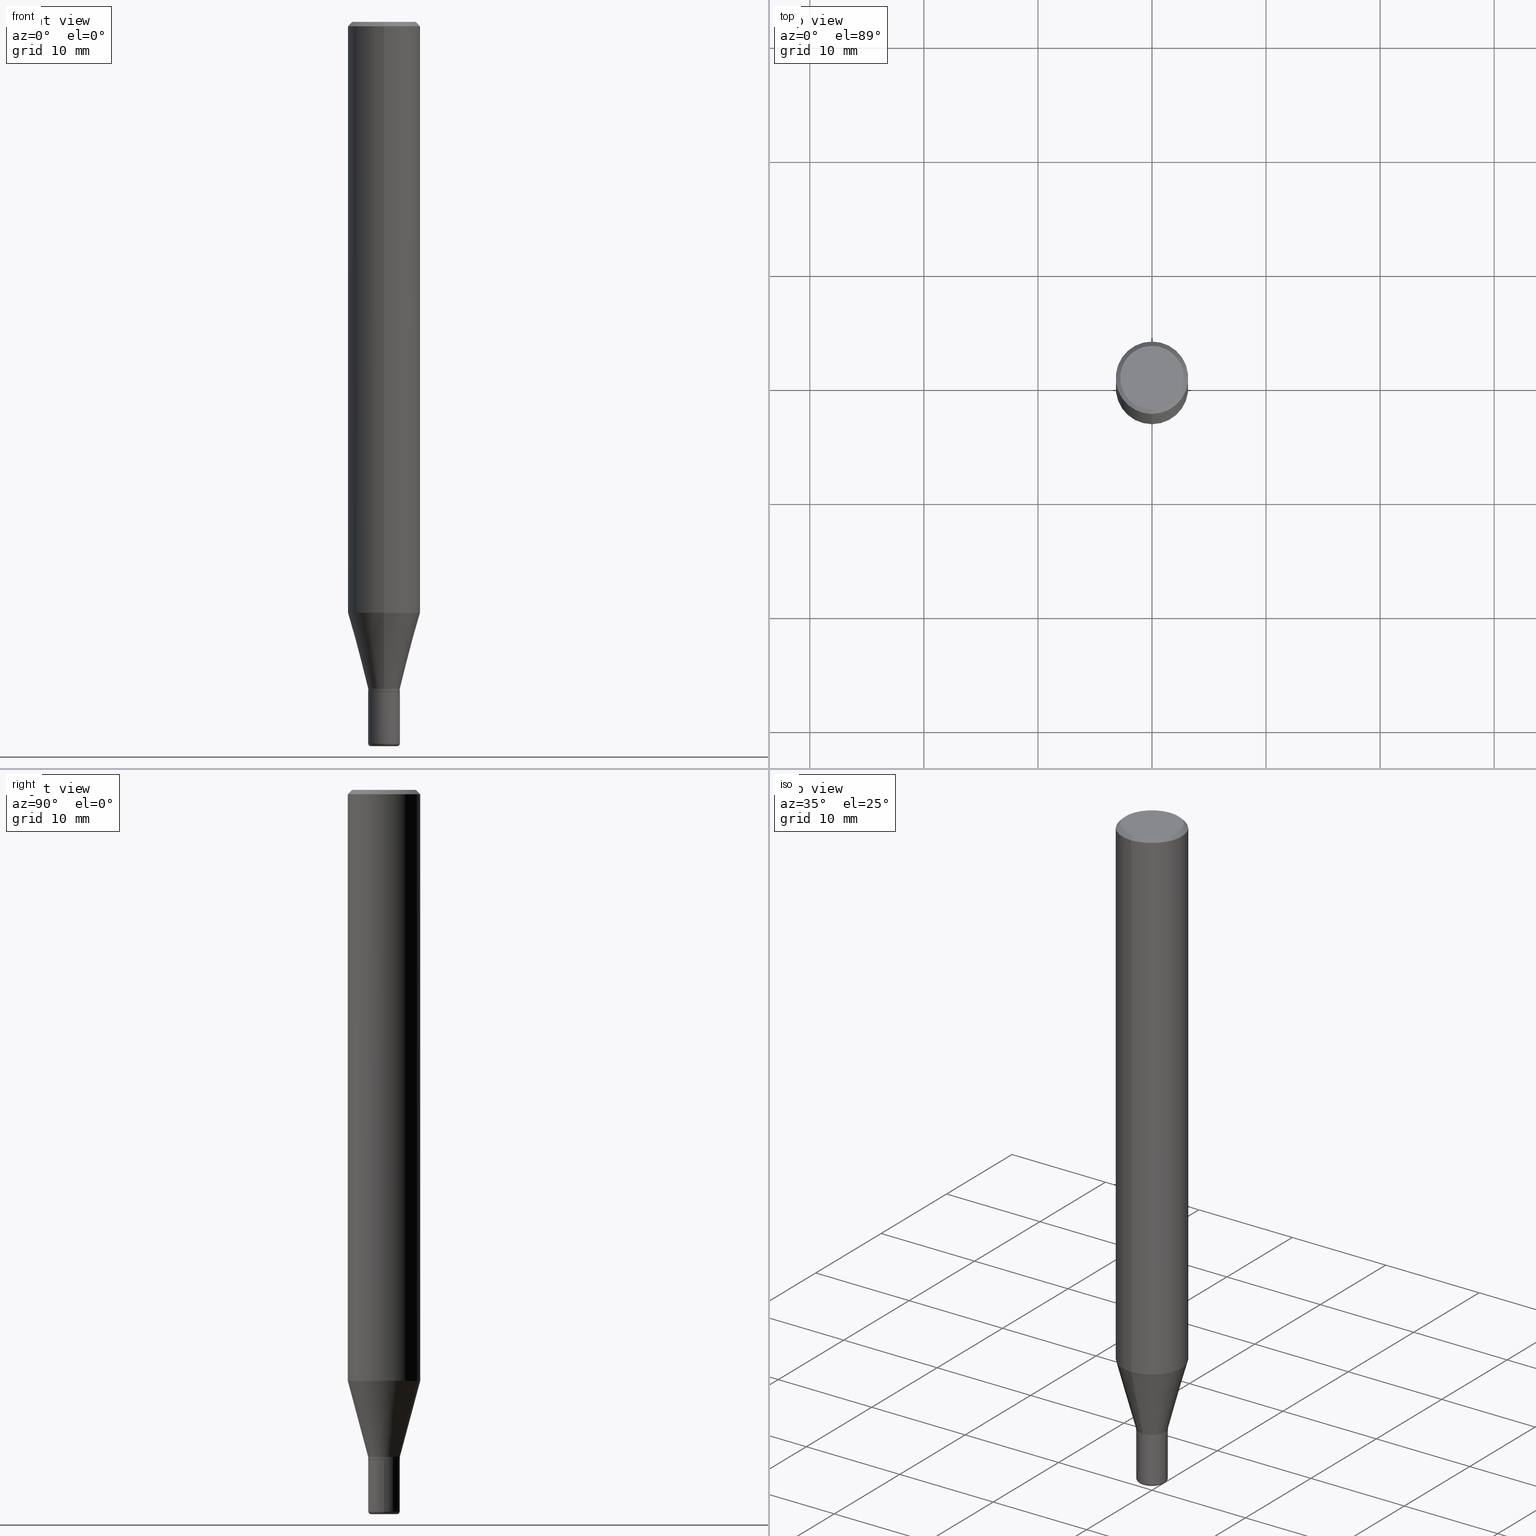
[diagram: canonical four-view strip — front | top / right | iso, engineering-drawing reading convention]
A machine part, canonical four-view strip (front | top / right | iso — engineering-drawing reading convention). The complete STEP part file that produces these views, byte-faithful:
ISO-10303-21;
HEADER;
FILE_DESCRIPTION (( 'STEP AP203' ),
    '1' );
FILE_NAME ('05300.STEP',
    '2024-02-29T19:35:28',
    ( '' ),
    ( '' ),
    'SwSTEP 2.0',
    'SolidWorks 2023',
    '' );
FILE_SCHEMA (( 'CONFIG_CONTROL_DESIGN' ));
ENDSEC;

DATA;
#1 = AXIS2_PLACEMENT_3D ( 'NONE', #424, #445, #93 ) ;
#2 = EDGE_CURVE ( 'NONE', #193, #112, #17, .T. ) ;
#3 = DIRECTION ( 'NONE',  ( -6.982962677686265922E-15, -1.000000000000000000, 4.994237648380730566E-15 ) ) ;
#4 = VERTEX_POINT ( 'NONE', #428 ) ;
#5 = PERSON_AND_ORGANIZATION_ROLE ( 'creator' ) ;
#6 = DIRECTION ( 'NONE',  ( 1.000000000000000000, -6.982962677686286432E-15, 0.000000000000000000 ) ) ;
#7 = DIRECTION ( 'NONE',  ( -6.982962677686266711E-15, -1.000000000000000000, 3.491481338843145583E-15 ) ) ;
#8 = ORIENTED_EDGE ( 'NONE', *, *, #464, .F. ) ;
#9 = ORIENTED_EDGE ( 'NONE', *, *, #244, .F. ) ;
#10 = VECTOR ( 'NONE', #455, 39.37007874015748143 ) ;
#11 = ADVANCED_FACE ( 'NONE', ( #457 ), #165, .T. ) ;
#12 = CARTESIAN_POINT ( 'NONE',  ( -3.819680584693829247E-16, -0.05470000000000810325, -2.302000000000000046 ) ) ;
#13 = CC_DESIGN_PERSON_AND_ORGANIZATION_ASSIGNMENT ( #363, #5, ( #206 ) ) ;
#14 = CARTESIAN_POINT ( 'NONE',  ( -8.728703347107828458E-16, -0.1250000000000000555, -0.01500000000000006363 ) ) ;
#15 = VERTEX_POINT ( 'NONE', #158 ) ;
#16 = DIRECTION ( 'NONE',  ( -2.445425972994914586E-29, 3.491542678409457073E-15, 1.000000000000000000 ) ) ;
#17 = LINE ( 'NONE', #30, #356 ) ;
#18 = ORIENTED_EDGE ( 'NONE', *, *, #51, .F. ) ;
#19 = CALENDAR_DATE ( 2024, 29, 2 ) ;
#20 = CARTESIAN_POINT ( 'NONE',  ( 5.653824849564242337E-29, -8.072446672482665434E-15, -2.312000000000000277 ) ) ;
#21 =( LENGTH_UNIT ( ) NAMED_UNIT ( * ) SI_UNIT ( $, .METRE. ) );
#22 = EDGE_LOOP ( 'NONE', ( #136, #217, #504, #269 ) ) ;
#23 = DIRECTION ( 'NONE',  ( -6.982962677686266711E-15, -1.000000000000000000, 5.040309951410075518E-15 ) ) ;
#24 = EDGE_CURVE ( 'NONE', #4, #310, #302, .T. ) ;
#25 = AXIS2_PLACEMENT_3D ( 'NONE', #49, #218, #42 ) ;
#26 = DIRECTION ( 'NONE',  ( -2.445425972994914586E-29, 3.491542678409457073E-15, 1.000000000000000000 ) ) ;
#27 = EDGE_LOOP ( 'NONE', ( #429, #341, #9, #510 ) ) ;
#28 = CYLINDRICAL_SURFACE ( 'NONE', #331, 0.05470000000000004026 ) ;
#29 = DIRECTION ( 'NONE',  ( 1.000000000000000000, -6.982962677686284854E-15, 0.000000000000000000 ) ) ;
#30 = CARTESIAN_POINT ( 'NONE',  ( -8.575622497214409523E-16, -0.1250000000000000555, -0.01500000000000006363 ) ) ;
#31 = MANIFOLD_SOLID_BREP ( 'Body-Move/Copy2[1]', #199 ) ;
#32 = AXIS2_PLACEMENT_3D ( 'NONE', #110, #97, #275 ) ;
#33 = VERTEX_POINT ( 'NONE', #191 ) ;
#34 = MANIFOLD_SOLID_BREP ( 'Body-Move/Copy2[2]', #315 ) ;
#35 = CONICAL_SURFACE ( 'NONE', #111, 0.05470000000000006801, 0.2617993877991492968 ) ;
#36 = EDGE_CURVE ( 'NONE', #205, #92, #509, .T. ) ;
#37 = APPROVAL_ROLE ( '' ) ;
#38 = ADVANCED_FACE ( 'NONE', ( #425 ), #113, .T. ) ;
#39 = CIRCLE ( 'NONE', #241, 0.05470000000000005413 ) ;
#40 = CARTESIAN_POINT ( 'NONE',  ( -3.819680584694391310E-16, -0.05470000000000006107, 1.909873845089974919E-16 ) ) ;
#41 = ADVANCED_FACE ( 'NONE', ( #276 ), #28, .T. ) ;
#42 = DIRECTION ( 'NONE',  ( 6.982962677686265922E-15, 1.000000000000000000, -3.483106191921935554E-15 ) ) ;
#43 = EDGE_LOOP ( 'NONE', ( #59, #151, #443, #141 ) ) ;
#44 = DIRECTION ( 'NONE',  ( -2.445425972994914586E-29, 3.491542678409457073E-15, 1.000000000000000000 ) ) ;
#45 = APPROVAL ( #230, 'UNSPECIFIED' ) ;
#46 = PRODUCT_RELATED_PRODUCT_CATEGORY ( 'detail', '', ( #189 ) ) ;
#47 = CARTESIAN_POINT ( 'NONE',  ( -3.819680584693819879E-16, -0.05470000000000804080, -2.311500000000000110 ) ) ;
#48 = ORIENTED_EDGE ( 'NONE', *, *, #354, .T. ) ;
#49 = CARTESIAN_POINT ( 'NONE',  ( 3.668138959492494003E-31, -5.237314017614360786E-17, -0.01500000000000049905 ) ) ;
#50 = ORIENTED_EDGE ( 'NONE', *, *, #126, .F. ) ;
#51 = EDGE_CURVE ( 'NONE', #202, #401, #385, .T. ) ;
#52 = APPROVAL_DATE_TIME ( #329, #513 ) ;
#53 = FACE_OUTER_BOUND ( 'NONE', #500, .T. ) ;
#54 = AXIS2_PLACEMENT_3D ( 'NONE', #20, #374, #379 ) ;
#55 = ORIENTED_EDGE ( 'NONE', *, *, #216, .F. ) ;
#56 = AXIS2_PLACEMENT_3D ( 'NONE', #514, #320, #287 ) ;
#57 = DIRECTION ( 'NONE',  ( -2.445468806185136597E-29, 3.491481338843145583E-15, 1.000000000000000000 ) ) ;
#58 = ORIENTED_EDGE ( 'NONE', *, *, #178, .F. ) ;
#59 = ORIENTED_EDGE ( 'NONE', *, *, #280, .F. ) ;
#60 = DIRECTION ( 'NONE',  ( -2.445425972994914586E-29, 3.491542678409457073E-15, 1.000000000000000000 ) ) ;
#61 = ORIENTED_EDGE ( 'NONE', *, *, #288, .F. ) ;
#62 = LINE ( 'NONE', #85, #465 ) ;
#63 = VERTEX_POINT ( 'NONE', #150 ) ;
#64 = CALENDAR_DATE ( 2024, 29, 2 ) ;
#65 = APPROVAL_PERSON_ORGANIZATION ( #511, #155, #37 ) ;
#66 = CARTESIAN_POINT ( 'NONE',  ( 6.089217327400989947E-29, -8.693788533719431716E-15, -2.489999999999999769 ) ) ;
#67 = CIRCLE ( 'NONE', #99, 0.1250000000000000000 ) ;
#68 = CARTESIAN_POINT ( 'NONE',  ( -8.728703347107832402E-16, -0.1250000000000000000, 4.364428348011821341E-16 ) ) ;
#69 = CARTESIAN_POINT ( 'NONE',  ( -0.04470000000000000362, -8.376175930834667203E-15, -2.489999999999999769 ) ) ;
#70 = DIRECTION ( 'NONE',  ( -2.445425972994914586E-29, 3.491542678409457073E-15, 1.000000000000000000 ) ) ;
#71 = ORIENTED_EDGE ( 'NONE', *, *, #120, .F. ) ;
#72 = CARTESIAN_POINT ( 'NONE',  ( 8.881784197001251337E-16, 0.1250000000000000000, -4.364428348011821341E-16 ) ) ;
#73 = COORDINATED_UNIVERSAL_TIME_OFFSET ( 5, 0, .BEHIND. ) ;
#74 = EDGE_CURVE ( 'NONE', #92, #145, #430, .T. ) ;
#75 = EDGE_LOOP ( 'NONE', ( #235, #58 ) ) ;
#76 = VECTOR ( 'NONE', #201, 39.37007874015748143 ) ;
#77 = CIRCLE ( 'NONE', #245, 0.05470000000000006801 ) ;
#78 = AXIS2_PLACEMENT_3D ( 'NONE', #502, #159, #303 ) ;
#79 = CC_DESIGN_SECURITY_CLASSIFICATION ( #366, ( #206 ) ) ;
#80 = AXIS2_PLACEMENT_3D ( 'NONE', #228, #70, #108 ) ;
#81 = CARTESIAN_POINT ( 'NONE',  ( 6.113672015462842613E-29, -8.728703347107864943E-15, -2.500000000000000000 ) ) ;
#82 = ADVANCED_FACE ( 'NONE', ( #98 ), #222, .T. ) ;
#83 = CARTESIAN_POINT ( 'NONE',  ( -8.061085147381547495E-16, -0.1100000000000000283, -1.622931567555180613E-16 ) ) ;
#84 = CC_DESIGN_PERSON_AND_ORGANIZATION_ASSIGNMENT ( #221, #492, ( #189 ) ) ;
#85 = CARTESIAN_POINT ( 'NONE',  ( 3.886668764607751863E-16, 0.05470000000000006107, -1.909873845089974919E-16 ) ) ;
#86 = FACE_OUTER_BOUND ( 'NONE', #305, .T. ) ;
#87 = VECTOR ( 'NONE', #190, 39.37007874015748854 ) ;
#88 = EDGE_LOOP ( 'NONE', ( #397, #229, #491, #422 ) ) ;
#89 = COORDINATED_UNIVERSAL_TIME_OFFSET ( 5, 0, .BEHIND. ) ;
#90 = CARTESIAN_POINT ( 'NONE',  ( 8.881784197001751278E-16, 0.1249999999999999306, -0.01500000000000093446 ) ) ;
#91 = CARTESIAN_POINT ( 'NONE',  ( 3.886668764608322308E-16, 0.05469999999999206053, -2.311500000000000554 ) ) ;
#92 = VERTEX_POINT ( 'NONE', #380 ) ;
#93 = DIRECTION ( 'NONE',  ( -6.982962677686266711E-15, -1.000000000000000000, 5.040309951410075518E-15 ) ) ;
#94 = ORIENTED_EDGE ( 'NONE', *, *, #452, .F. ) ;
#95 = CARTESIAN_POINT ( 'NONE',  ( 0.000000000000000000, 0.000000000000000000, 0.000000000000000000 ) ) ;
#96 = CARTESIAN_POINT ( 'NONE',  ( 1.336089907445577974E-44, -1.907649213492703051E-30, -5.463628513805583995E-16 ) ) ;
#97 = DIRECTION ( 'NONE',  ( -2.445425972994914586E-29, 3.491542678409457073E-15, 1.000000000000000000 ) ) ;
#98 = FACE_OUTER_BOUND ( 'NONE', #486, .T. ) ;
#99 = AXIS2_PLACEMENT_3D ( 'NONE', #223, #60, #109 ) ;
#100 = ORIENTED_EDGE ( 'NONE', *, *, #74, .F. ) ;
#101 = EDGE_CURVE ( 'NONE', #33, #145, #232, .T. ) ;
#102 = DIRECTION ( 'NONE',  ( 1.000000000000000000, -6.982962677686286432E-15, 0.000000000000000000 ) ) ;
#103 = FACE_OUTER_BOUND ( 'NONE', #294, .T. ) ;
#104 = ORIENTED_EDGE ( 'NONE', *, *, #216, .T. ) ;
#105 = CARTESIAN_POINT ( 'NONE',  ( 0.000000000000000000, 0.000000000000000000, 0.000000000000000000 ) ) ;
#106 = ORIENTED_EDGE ( 'NONE', *, *, #24, .F. ) ;
#107 = CARTESIAN_POINT ( 'NONE',  ( 0.05470000000000008189, -9.075756592188872474E-15, -2.489999999999999769 ) ) ;
#108 = DIRECTION ( 'NONE',  ( -6.982962677686265922E-15, -1.000000000000000000, 4.370956789862821150E-15 ) ) ;
#109 = DIRECTION ( 'NONE',  ( -6.982962677686265922E-15, -1.000000000000000000, 3.483106191921935554E-15 ) ) ;
#110 = CARTESIAN_POINT ( 'NONE',  ( 5.653824849564242337E-29, -8.072446672482665434E-15, -2.312000000000000277 ) ) ;
#111 = AXIS2_PLACEMENT_3D ( 'NONE', #149, #16, #338 ) ;
#112 = VERTEX_POINT ( 'NONE', #14 ) ;
#113 = CYLINDRICAL_SURFACE ( 'NONE', #432, 0.05470000000000004026 ) ;
#114 = EDGE_CURVE ( 'NONE', #301, #347, #260, .T. ) ;
#115 = CC_DESIGN_PERSON_AND_ORGANIZATION_ASSIGNMENT ( #131, #441, ( #366 ) ) ;
#116 = DATE_AND_TIME ( #243, #255 ) ;
#117 = PERSON ( 'UNSPECIFIED', 'UNSPECIFIED', 'UNSPECIFIED', ('UNSPECIFIED'), ('UNSPECIFIED'), ('UNSPECIFIED') ) ;
#118 = SHAPE_DEFINITION_REPRESENTATION ( #488, #512 ) ;
#119 = VECTOR ( 'NONE', #345, 39.37007874015748854 ) ;
#120 = EDGE_CURVE ( 'NONE', #401, #15, #62, .T. ) ;
#121 = CARTESIAN_POINT ( 'NONE',  ( 4.987780875225493801E-29, -7.121479034213441071E-15, -2.039636828227908261 ) ) ;
#122 = CIRCLE ( 'NONE', #473, 0.01000000000000008174 ) ;
#123 = CIRCLE ( 'NONE', #451, 0.1250000000000000000 ) ;
#124 = AXIS2_PLACEMENT_3D ( 'NONE', #231, #273, #427 ) ;
#125 = DIRECTION ( 'NONE',  ( -2.445425972994914586E-29, 3.491542678409457073E-15, 1.000000000000000000 ) ) ;
#126 = EDGE_CURVE ( 'NONE', #15, #265, #399, .T. ) ;
#127 = DIRECTION ( 'NONE',  ( -2.445468806185136597E-29, 3.491481338843145583E-15, 1.000000000000000000 ) ) ;
#128 = DIRECTION ( 'NONE',  ( 1.000000000000000000, -6.982962677686275388E-15, 0.000000000000000000 ) ) ;
#129 = DIRECTION ( 'NONE',  ( 1.000000000000000000, -6.982962677686260400E-15, 0.000000000000000000 ) ) ;
#130 = ORIENTED_EDGE ( 'NONE', *, *, #516, .F. ) ;
#131 = PERSON_AND_ORGANIZATION ( #117, #358 ) ;
#132 = EDGE_CURVE ( 'NONE', #265, #15, #77, .T. ) ;
#133 = FACE_OUTER_BOUND ( 'NONE', #373, .T. ) ;
#134 = CIRCLE ( 'NONE', #440, 0.04470000000000000362 ) ;
#135 = CYLINDRICAL_SURFACE ( 'NONE', #476, 0.05470000000000006107 ) ;
#136 = ORIENTED_EDGE ( 'NONE', *, *, #36, .T. ) ;
#137 = APPLICATION_PROTOCOL_DEFINITION ( 'international standard', 'config_control_design', 1994, #166 ) ;
#138 = DIRECTION ( 'NONE',  ( -2.445425972994914586E-29, 3.491542678409457073E-15, 1.000000000000000000 ) ) ;
#139 = CARTESIAN_POINT ( 'NONE',  ( 7.681258945454894762E-16, 0.1100000000000000283, -6.572511203153196119E-16 ) ) ;
#140 = PLANE ( 'NONE',  #259 ) ;
#141 = ORIENTED_EDGE ( 'NONE', *, *, #101, .F. ) ;
#142 = PERSON_AND_ORGANIZATION_ROLE ( 'design_supplier' ) ;
#143 = CARTESIAN_POINT ( 'NONE',  ( -0.04470000000000000362, -8.358106200740877987E-15, -2.500000000000000000 ) ) ;
#144 = DIRECTION ( 'NONE',  ( -2.445468806185136597E-29, 3.491481338843145583E-15, 1.000000000000000000 ) ) ;
#145 = VERTEX_POINT ( 'NONE', #90 ) ;
#146 = EDGE_CURVE ( 'NONE', #33, #193, #496, .T. ) ;
#147 = APPROVAL_PERSON_ORGANIZATION ( #185, #45, #444 ) ;
#148 = APPROVAL_ROLE ( '' ) ;
#149 = CARTESIAN_POINT ( 'NONE',  ( 5.629370589834293603E-29, -8.037531245698571084E-15, -2.302000000000000046 ) ) ;
#150 = CARTESIAN_POINT ( 'NONE',  ( 0.04470000000000000362, -9.040841778800442403E-15, -2.500000000000000000 ) ) ;
#151 = ORIENTED_EDGE ( 'NONE', *, *, #2, .T. ) ;
#152 = AXIS2_PLACEMENT_3D ( 'NONE', #404, #7, #128 ) ;
#153 = CC_DESIGN_PERSON_AND_ORGANIZATION_ASSIGNMENT ( #295, #262, ( #257 ) ) ;
#154 = DATE_AND_TIME ( #195, #194 ) ;
#155 = APPROVAL ( #312, 'UNSPECIFIED' ) ;
#156 = CYLINDRICAL_SURFACE ( 'NONE', #78, 0.1250000000000000000 ) ;
#157 = EDGE_LOOP ( 'NONE', ( #405, #420 ) ) ;
#158 = CARTESIAN_POINT ( 'NONE',  ( 6.384226480805032602E-16, 0.05469999999999203277, -2.302000000000000490 ) ) ;
#159 = DIRECTION ( 'NONE',  ( -2.445425972994914586E-29, 3.491542678409457073E-15, 1.000000000000000000 ) ) ;
#160 = DIRECTION ( 'NONE',  ( 2.445425972994914306E-29, -3.491542678409457073E-15, -1.000000000000000000 ) ) ;
#161 = ORIENTED_EDGE ( 'NONE', *, *, #283, .T. ) ;
#162 = DIRECTION ( 'NONE',  ( -4.851104656540967430E-15, -0.7071067811865504593, -0.7071067811865444641 ) ) ;
#163 = CC_DESIGN_APPROVAL ( #45, ( #206 ) ) ;
#164 = FACE_OUTER_BOUND ( 'NONE', #261, .T. ) ;
#165 = TOROIDAL_SURFACE ( 'NONE', #168, 0.04470000000000000362, 0.01000000000000007654 ) ;
#166 = APPLICATION_CONTEXT ( 'configuration controlled 3d designs of mechanical parts and assemblies' ) ;
#167 = LINE ( 'NONE', #251, #324 ) ;
#168 = AXIS2_PLACEMENT_3D ( 'NONE', #489, #144, #299 ) ;
#169 = UNCERTAINTY_MEASURE_WITH_UNIT (LENGTH_MEASURE( 1.000000000000000082E-05 ), #402, 'distance_accuracy_value', 'NONE');
#170 = CIRCLE ( 'NONE', #32, 0.05420000000000004675 ) ;
#171 = ADVANCED_FACE ( 'NONE', ( #362 ), #173, .T. ) ;
#172 = EDGE_CURVE ( 'NONE', #112, #145, #123, .T. ) ;
#173 = CONICAL_SURFACE ( 'NONE', #277, 0.05470000000000006801, 0.2617993877991492968 ) ;
#174 = CONICAL_SURFACE ( 'NONE', #124, 0.05420000000000004675, 0.7853981633975507526 ) ;
#175 = CARTESIAN_POINT ( 'NONE',  ( 5.629370589834293603E-29, -8.037531245698571084E-15, -2.302000000000000046 ) ) ;
#176 = LINE ( 'NONE', #327, #214 ) ;
#177 = ORIENTED_EDGE ( 'NONE', *, *, #323, .F. ) ;
#178 = EDGE_CURVE ( 'NONE', #267, #63, #134, .T. ) ;
#179 = APPROVAL_STATUS ( 'not_yet_approved' ) ;
#180 = CC_DESIGN_APPROVAL ( #155, ( #366 ) ) ;
#181 = DIRECTION ( 'NONE',  ( -2.445425972994914586E-29, 3.491542678409457073E-15, 1.000000000000000000 ) ) ;
#182 = ORIENTED_EDGE ( 'NONE', *, *, #434, .T. ) ;
#183 =( NAMED_UNIT ( * ) PLANE_ANGLE_UNIT ( ) SI_UNIT ( $, .RADIAN. ) );
#184 = ORIENTED_EDGE ( 'NONE', *, *, #120, .T. ) ;
#185 = PERSON_AND_ORGANIZATION ( #117, #358 ) ;
#186 = PLANE ( 'NONE',  #54 ) ;
#187 = LINE ( 'NONE', #254, #76 ) ;
#188 = EDGE_LOOP ( 'NONE', ( #328, #182, #446, #250 ) ) ;
#189 = PRODUCT ( '05300', '05300', '', ( #447 ) ) ;
#190 = DIRECTION ( 'NONE',  ( -1.807323732225323434E-15, -0.2588190451025172423, 0.9659258262890693114 ) ) ;
#191 = CARTESIAN_POINT ( 'NONE',  ( 8.204981146281365554E-16, 0.1100000000000000283, -9.304325460055988116E-16 ) ) ;
#192 = EDGE_CURVE ( 'NONE', #313, #347, #508, .T. ) ;
#193 = VERTEX_POINT ( 'NONE', #83 ) ;
#194 = LOCAL_TIME ( 14, 35, 28.00000000000000000, #376 ) ;
#195 = CALENDAR_DATE ( 2024, 29, 2 ) ;
#196 = FACE_OUTER_BOUND ( 'NONE', #75, .T. ) ;
#197 = ORIENTED_EDGE ( 'NONE', *, *, #516, .T. ) ;
#198 = DIRECTION ( 'NONE',  ( -2.445425972994914586E-29, 3.491542678409457073E-15, 1.000000000000000000 ) ) ;
#199 = CLOSED_SHELL ( 'NONE', ( #11, #41, #438, #38, #82, #359 ) ) ;
#200 = CARTESIAN_POINT ( 'NONE',  ( 5.652602136577745517E-29, -8.070700901143460796E-15, -2.311500000000000110 ) ) ;
#201 = DIRECTION ( 'NONE',  ( -4.937700262165053702E-15, -0.7071067811866175168, 0.7071067811864775177 ) ) ;
#202 = VERTEX_POINT ( 'NONE', #47 ) ;
#203 = CARTESIAN_POINT ( 'NONE',  ( 0.000000000000000000, 0.000000000000000000, 0.000000000000000000 ) ) ;
#204 = CARTESIAN_POINT ( 'NONE',  ( 0.05469999999999999862, -8.454272913874791960E-15, -2.312000000000000277 ) ) ;
#205 = VERTEX_POINT ( 'NONE', #396 ) ;
#206 = PRODUCT_DEFINITION_FORMATION_WITH_SPECIFIED_SOURCE ( 'ANY', '', #189, .NOT_KNOWN. ) ;
#207 = ADVANCED_FACE ( 'NONE', ( #133 ), #237, .T. ) ;
#208 = CC_DESIGN_DATE_AND_TIME_ASSIGNMENT ( #306, #418, ( #257 ) ) ;
#209 = CARTESIAN_POINT ( 'NONE',  ( 3.819680584694952388E-16, 0.05469999999999192175, -2.312000000000000277 ) ) ;
#210 = AXIS2_PLACEMENT_3D ( 'NONE', #339, #279, #375 ) ;
#211 = ADVANCED_FACE ( 'NONE', ( #403 ), #213, .T. ) ;
#212 = DIRECTION ( 'NONE',  ( -2.445425972994914586E-29, 3.491542678409457073E-15, 1.000000000000000000 ) ) ;
#213 = CONICAL_SURFACE ( 'NONE', #25, 0.1250000000000000000, 0.7853981633974490562 ) ;
#214 = VECTOR ( 'NONE', #293, 39.37007874015748854 ) ;
#215 = CARTESIAN_POINT ( 'NONE',  ( 5.629370589834293603E-29, -8.037531245698571084E-15, -2.302000000000000046 ) ) ;
#216 = EDGE_CURVE ( 'NONE', #202, #265, #394, .T. ) ;
#217 = ORIENTED_EDGE ( 'NONE', *, *, #74, .T. ) ;
#218 = DIRECTION ( 'NONE',  ( 2.445425972994914586E-29, -3.491542678409457073E-15, -1.000000000000000000 ) ) ;
#219 = DIRECTION ( 'NONE',  ( -6.982962677686265133E-15, -1.000000000000000000, 3.491542678409456679E-15 ) ) ;
#220 = ORIENTED_EDGE ( 'NONE', *, *, #501, .F. ) ;
#221 = PERSON_AND_ORGANIZATION ( #117, #358 ) ;
#222 = TOROIDAL_SURFACE ( 'NONE', #224, 0.04470000000000000362, 0.01000000000000007654 ) ;
#223 = CARTESIAN_POINT ( 'NONE',  ( 3.668138959492494003E-31, -5.237314017614360786E-17, -0.01500000000000049905 ) ) ;
#224 = AXIS2_PLACEMENT_3D ( 'NONE', #421, #372, #236 ) ;
#225 = ORIENTED_EDGE ( 'NONE', *, *, #288, .T. ) ;
#226 = ADVANCED_FACE ( 'NONE', ( #357 ), #517, .T. ) ;
#227 = LINE ( 'NONE', #253, #10 ) ;
#228 = CARTESIAN_POINT ( 'NONE',  ( 4.987780875225493801E-29, -7.121479034213441071E-15, -2.039636828227908261 ) ) ;
#229 = ORIENTED_EDGE ( 'NONE', *, *, #433, .T. ) ;
#230 = APPROVAL_STATUS ( 'not_yet_approved' ) ;
#231 = CARTESIAN_POINT ( 'NONE',  ( 5.653824849564242337E-29, -8.072446672482665434E-15, -2.312000000000000277 ) ) ;
#232 = LINE ( 'NONE', #449, #119 ) ;
#233 = EDGE_LOOP ( 'NONE', ( #458, #410, #417, #450 ) ) ;
#234 = DIRECTION ( 'NONE',  ( -6.982962677686265922E-15, -1.000000000000000000, 3.491542678409456679E-15 ) ) ;
#235 = ORIENTED_EDGE ( 'NONE', *, *, #352, .F. ) ;
#236 = DIRECTION ( 'NONE',  ( 1.000000000000000000, -6.982962677686284854E-15, 4.883557194083119067E-29 ) ) ;
#237 = CONICAL_SURFACE ( 'NONE', #426, 0.1250000000000000000, 0.7853981633974490562 ) ;
#238 = EDGE_CURVE ( 'NONE', #4, #401, #227, .T. ) ;
#239 = FACE_OUTER_BOUND ( 'NONE', #252, .T. ) ;
#240 = DIRECTION ( 'NONE',  ( 1.000000000000000000, -6.982962677686266711E-15, 4.876176775795936353E-29 ) ) ;
#241 = AXIS2_PLACEMENT_3D ( 'NONE', #200, #26, #459 ) ;
#242 = VECTOR ( 'NONE', #377, 39.37007874015748143 ) ;
#243 = CALENDAR_DATE ( 2024, 29, 2 ) ;
#244 = EDGE_CURVE ( 'NONE', #301, #330, #475, .T. ) ;
#245 = AXIS2_PLACEMENT_3D ( 'NONE', #215, #249, #367 ) ;
#246 = DIRECTION ( 'NONE',  ( 6.982962677686265922E-15, 1.000000000000000000, -3.483106191921935554E-15 ) ) ;
#247 = CARTESIAN_POINT ( 'NONE',  ( 3.668138959492494003E-31, -5.237314017614360786E-17, -0.01500000000000049905 ) ) ;
#248 = AXIS2_PLACEMENT_3D ( 'NONE', #467, #198, #23 ) ;
#249 = DIRECTION ( 'NONE',  ( -2.445425972994914586E-29, 3.491542678409457073E-15, 1.000000000000000000 ) ) ;
#250 = ORIENTED_EDGE ( 'NONE', *, *, #114, .F. ) ;
#251 = CARTESIAN_POINT ( 'NONE',  ( -0.05470000000000004026, 3.886668764607750877E-16, -2.690657494369435810E-30 ) ) ;
#252 = EDGE_LOOP ( 'NONE', ( #456, #439, #256, #94 ) ) ;
#253 = CARTESIAN_POINT ( 'NONE',  ( 3.851141627820311351E-16, 0.05419999999999197682, -2.312000000000000277 ) ) ;
#254 = CARTESIAN_POINT ( 'NONE',  ( -3.784765771305394738E-16, -0.05420000000000812362, -2.311999999999999833 ) ) ;
#255 = LOCAL_TIME ( 14, 35, 28.00000000000000000, #89 ) ;
#256 = ORIENTED_EDGE ( 'NONE', *, *, #281, .T. ) ;
#257 = PRODUCT_DEFINITION ( 'UNKNOWN', '', #206, #472 ) ;
#258 = CARTESIAN_POINT ( 'NONE',  ( 6.113672015462842613E-29, -8.728703347107864943E-15, -2.500000000000000000 ) ) ;
#259 = AXIS2_PLACEMENT_3D ( 'NONE', #209, #355, #471 ) ;
#260 = LINE ( 'NONE', #416, #393 ) ;
#261 = EDGE_LOOP ( 'NONE', ( #278, #479, #316, #61 ) ) ;
#262 = PERSON_AND_ORGANIZATION_ROLE ( 'creator' ) ;
#263 = LINE ( 'NONE', #68, #242 ) ;
#264 = DIRECTION ( 'NONE',  ( 6.982962677686265922E-15, 1.000000000000000000, -3.491542678409457073E-15 ) ) ;
#265 = VERTEX_POINT ( 'NONE', #12 ) ;
#266 = DIRECTION ( 'NONE',  ( -2.445468806185136877E-29, 3.491481338843145188E-15, 1.000000000000000000 ) ) ;
#267 = VERTEX_POINT ( 'NONE', #143 ) ;
#268 = DIRECTION ( 'NONE',  ( 1.000000000000000000, -6.982962677686284854E-15, 0.000000000000000000 ) ) ;
#269 = ORIENTED_EDGE ( 'NONE', *, *, #354, .F. ) ;
#270 = ADVANCED_FACE ( 'NONE', ( #419 ), #186, .F. ) ;
#271 = EDGE_LOOP ( 'NONE', ( #197, #495, #18, #8 ) ) ;
#272 = CC_DESIGN_APPROVAL ( #513, ( #257 ) ) ;
#273 = DIRECTION ( 'NONE',  ( -2.445425972994914586E-29, 3.491542678409457073E-15, 1.000000000000000000 ) ) ;
#274 = APPLICATION_CONTEXT ( 'configuration controlled 3d designs of mechanical parts and assemblies' ) ;
#275 = DIRECTION ( 'NONE',  ( -6.982962677686266711E-15, -1.000000000000000000, 5.040309951410075518E-15 ) ) ;
#276 = FACE_OUTER_BOUND ( 'NONE', #188, .T. ) ;
#277 = AXIS2_PLACEMENT_3D ( 'NONE', #175, #138, #474 ) ;
#278 = ORIENTED_EDGE ( 'NONE', *, *, #238, .F. ) ;
#279 = DIRECTION ( 'NONE',  ( -2.445425972994914586E-29, 3.491542678409457073E-15, 1.000000000000000000 ) ) ;
#280 = EDGE_CURVE ( 'NONE', #193, #33, #411, .T. ) ;
#281 = EDGE_CURVE ( 'NONE', #265, #205, #298, .T. ) ;
#282 = AXIS2_PLACEMENT_3D ( 'NONE', #96, #381, #234 ) ;
#283 = EDGE_CURVE ( 'NONE', #145, #112, #67, .T. ) ;
#284 = AXIS2_PLACEMENT_3D ( 'NONE', #435, #292, #129 ) ;
#285 = CONICAL_SURFACE ( 'NONE', #1, 0.05420000000000004675, 0.7853981633975507526 ) ;
#286 = DIRECTION ( 'NONE',  ( -6.982962677686265922E-15, -1.000000000000000000, 3.491542678409457073E-15 ) ) ;
#287 = DIRECTION ( 'NONE',  ( -6.982962677686265133E-15, -1.000000000000000000, 3.491542678409456679E-15 ) ) ;
#288 = EDGE_CURVE ( 'NONE', #401, #202, #39, .T. ) ;
#289 = ORIENTED_EDGE ( 'NONE', *, *, #146, .F. ) ;
#290 = AXIS2_PLACEMENT_3D ( 'NONE', #322, #125, #286 ) ;
#291 = SECURITY_CLASSIFICATION_LEVEL ( 'unclassified' ) ;
#292 = DIRECTION ( 'NONE',  ( -2.445468806185136597E-29, 3.491481338843145583E-15, 1.000000000000000000 ) ) ;
#293 = DIRECTION ( 'NONE',  ( 1.839019923739593216E-15, 0.2588190451025239591, 0.9659258262890673130 ) ) ;
#294 = EDGE_LOOP ( 'NONE', ( #461, #333 ) ) ;
#295 = PERSON_AND_ORGANIZATION ( #117, #358 ) ;
#296 = DIRECTION ( 'NONE',  ( -6.982962677686265922E-15, -1.000000000000000000, 3.483106191921935554E-15 ) ) ;
#297 = ORIENTED_EDGE ( 'NONE', *, *, #51, .T. ) ;
#298 = LINE ( 'NONE', #462, #87 ) ;
#299 = DIRECTION ( 'NONE',  ( 1.000000000000000000, -6.982962677686284854E-15, 4.883557194083119067E-29 ) ) ;
#300 =( GEOMETRIC_REPRESENTATION_CONTEXT ( 3 ) GLOBAL_UNCERTAINTY_ASSIGNED_CONTEXT ( ( #169 ) ) GLOBAL_UNIT_ASSIGNED_CONTEXT ( ( #402, #183, #343 ) ) REPRESENTATION_CONTEXT ( 'NONE', 'WORKASPACE' ) );
#301 = VERTEX_POINT ( 'NONE', #107 ) ;
#302 = CIRCLE ( 'NONE', #248, 0.05420000000000004675 ) ;
#303 = DIRECTION ( 'NONE',  ( -6.982962677686265922E-15, -1.000000000000000000, 3.491542678409457073E-15 ) ) ;
#304 = CIRCLE ( 'NONE', #152, 0.01000000000000008174 ) ;
#305 = EDGE_LOOP ( 'NONE', ( #71, #225, #104, #50 ) ) ;
#306 = DATE_AND_TIME ( #19, #350 ) ;
#307 = ADVANCED_FACE ( 'NONE', ( #239 ), #35, .T. ) ;
#308 = DIRECTION ( 'NONE',  ( 1.000000000000000000, -6.982962677686265922E-15, 4.876176775795935793E-29 ) ) ;
#309 = DIRECTION ( 'NONE',  ( -6.982962677686265922E-15, -1.000000000000000000, 4.370956789862821150E-15 ) ) ;
#310 = VERTEX_POINT ( 'NONE', #408 ) ;
#311 = FACE_OUTER_BOUND ( 'NONE', #271, .T. ) ;
#312 = APPROVAL_STATUS ( 'not_yet_approved' ) ;
#313 = VERTEX_POINT ( 'NONE', #371 ) ;
#314 = DIRECTION ( 'NONE',  ( -2.445468806185136597E-29, 3.491481338843145583E-15, 1.000000000000000000 ) ) ;
#315 = CLOSED_SHELL ( 'NONE', ( #395, #342, #211, #226, #171, #307, #317, #207, #469, #270, #382, #413 ) ) ;
#316 = ORIENTED_EDGE ( 'NONE', *, *, #464, .T. ) ;
#317 = ADVANCED_FACE ( 'NONE', ( #53 ), #156, .T. ) ;
#318 = DATE_AND_TIME ( #383, #321 ) ;
#319 = AXIS2_PLACEMENT_3D ( 'NONE', #346, #335, #29 ) ;
#320 = DIRECTION ( 'NONE',  ( -2.445425972994914586E-29, 3.491542678409457073E-15, 1.000000000000000000 ) ) ;
#321 = LOCAL_TIME ( 14, 35, 28.00000000000000000, #73 ) ;
#322 = CARTESIAN_POINT ( 'NONE',  ( 0.000000000000000000, 0.000000000000000000, 0.000000000000000000 ) ) ;
#323 = EDGE_CURVE ( 'NONE', #330, #301, #518, .T. ) ;
#324 = VECTOR ( 'NONE', #368, 39.37007874015748143 ) ;
#325 = FACE_OUTER_BOUND ( 'NONE', #499, .T. ) ;
#326 = EDGE_CURVE ( 'NONE', #347, #313, #497, .T. ) ;
#327 = CARTESIAN_POINT ( 'NONE',  ( 3.886668764608315406E-16, 0.05469999999999203277, -2.302000000000000490 ) ) ;
#328 = ORIENTED_EDGE ( 'NONE', *, *, #244, .T. ) ;
#329 = DATE_AND_TIME ( #64, #340 ) ;
#330 = VERTEX_POINT ( 'NONE', #448 ) ;
#331 = AXIS2_PLACEMENT_3D ( 'NONE', #203, #314, #240 ) ;
#332 = CARTESIAN_POINT ( 'NONE',  ( 1.336089907445577974E-44, -1.907649213492703051E-30, -5.463628513805583995E-16 ) ) ;
#333 = ORIENTED_EDGE ( 'NONE', *, *, #280, .T. ) ;
#334 = APPROVAL_DATE_TIME ( #154, #45 ) ;
#335 = DIRECTION ( 'NONE',  ( -2.445468806185136597E-29, 3.491481338843145583E-15, 1.000000000000000000 ) ) ;
#336 = ORIENTED_EDGE ( 'NONE', *, *, #178, .T. ) ;
#337 = DIRECTION ( 'NONE',  ( 1.000000000000000000, 0.000000000000000000, 0.000000000000000000 ) ) ;
#338 = DIRECTION ( 'NONE',  ( -6.982962677686265922E-15, -1.000000000000000000, 4.994237648380730566E-15 ) ) ;
#339 = CARTESIAN_POINT ( 'NONE',  ( 5.652602136577745517E-29, -8.070700901143460796E-15, -2.311500000000000110 ) ) ;
#340 = LOCAL_TIME ( 14, 35, 28.00000000000000000, #454 ) ;
#341 = ORIENTED_EDGE ( 'NONE', *, *, #501, .T. ) ;
#342 = ADVANCED_FACE ( 'NONE', ( #311 ), #174, .T. ) ;
#343 =( NAMED_UNIT ( * ) SI_UNIT ( $, .STERADIAN. ) SOLID_ANGLE_UNIT ( ) );
#344 = DIRECTION ( 'NONE',  ( -2.445468806185136597E-29, 3.491481338843145583E-15, 1.000000000000000000 ) ) ;
#345 = DIRECTION ( 'NONE',  ( 4.937700262164550409E-15, 0.7071067811865455743, -0.7071067811865493491 ) ) ;
#346 = CARTESIAN_POINT ( 'NONE',  ( 6.089217327400989947E-29, -8.693788533719431716E-15, -2.489999999999999769 ) ) ;
#347 = VERTEX_POINT ( 'NONE', #204 ) ;
#348 = PLANE ( 'NONE',  #361 ) ;
#349 = ORIENTED_EDGE ( 'NONE', *, *, #2, .F. ) ;
#350 = LOCAL_TIME ( 14, 35, 28.00000000000000000, #370 ) ;
#351 = VECTOR ( 'NONE', #494, 39.37007874015748143 ) ;
#352 = EDGE_CURVE ( 'NONE', #63, #267, #412, .T. ) ;
#353 = AXIS2_PLACEMENT_3D ( 'NONE', #258, #57, #102 ) ;
#354 = EDGE_CURVE ( 'NONE', #205, #112, #263, .T. ) ;
#355 = DIRECTION ( 'NONE',  ( 2.438088387897960049E-29, -3.491481338843145188E-15, -1.000000000000000000 ) ) ;
#356 = VECTOR ( 'NONE', #162, 39.37007874015748854 ) ;
#357 = FACE_OUTER_BOUND ( 'NONE', #22, .T. ) ;
#358 = ORGANIZATION ( 'UNSPECIFIED', 'UNSPECIFIED', '' ) ;
#359 = ADVANCED_FACE ( 'NONE', ( #196 ), #348, .F. ) ;
#360 = AXIS2_PLACEMENT_3D ( 'NONE', #332, #477, #484 ) ;
#361 = AXIS2_PLACEMENT_3D ( 'NONE', #498, #506, #308 ) ;
#362 = FACE_OUTER_BOUND ( 'NONE', #88, .T. ) ;
#363 = PERSON_AND_ORGANIZATION ( #117, #358 ) ;
#364 = DIRECTION ( 'NONE',  ( -2.445425972994914586E-29, 3.491542678409457073E-15, 1.000000000000000000 ) ) ;
#365 = ORIENTED_EDGE ( 'NONE', *, *, #283, .F. ) ;
#366 = SECURITY_CLASSIFICATION ( '', '', #291 ) ;
#367 = DIRECTION ( 'NONE',  ( -6.982962677686265922E-15, -1.000000000000000000, 4.994237648380730566E-15 ) ) ;
#368 = DIRECTION ( 'NONE',  ( -2.445468806185136877E-29, 3.491481338843145188E-15, 1.000000000000000000 ) ) ;
#369 = ORIENTED_EDGE ( 'NONE', *, *, #388, .T. ) ;
#370 = COORDINATED_UNIVERSAL_TIME_OFFSET ( 5, 0, .BEHIND. ) ;
#371 = CARTESIAN_POINT ( 'NONE',  ( -0.05469999999999999862, -7.994379818101616864E-15, -2.312000000000000277 ) ) ;
#372 = DIRECTION ( 'NONE',  ( -2.445468806185136597E-29, 3.491481338843145583E-15, 1.000000000000000000 ) ) ;
#373 = EDGE_LOOP ( 'NONE', ( #349, #289, #466, #161 ) ) ;
#374 = DIRECTION ( 'NONE',  ( -2.445425972994914306E-29, 3.491542678409457073E-15, 1.000000000000000000 ) ) ;
#375 = DIRECTION ( 'NONE',  ( -6.982962677686265133E-15, -1.000000000000000000, 4.994237648380732144E-15 ) ) ;
#376 = COORDINATED_UNIVERSAL_TIME_OFFSET ( 5, 0, .BEHIND. ) ;
#377 = DIRECTION ( 'NONE',  ( -2.445425972994914586E-29, 3.491542678409457073E-15, 1.000000000000000000 ) ) ;
#378 = CC_DESIGN_PERSON_AND_ORGANIZATION_ASSIGNMENT ( #480, #142, ( #206 ) ) ;
#379 = DIRECTION ( 'NONE',  ( -6.982962677686265922E-15, -1.000000000000000000, 3.491542678409457073E-15 ) ) ;
#380 = CARTESIAN_POINT ( 'NONE',  ( 8.881784197001751278E-16, 0.1249999999999929085, -2.039636828227908705 ) ) ;
#381 = DIRECTION ( 'NONE',  ( -2.445425972994914586E-29, 3.491542678409457073E-15, 1.000000000000000000 ) ) ;
#382 = ADVANCED_FACE ( 'NONE', ( #164 ), #285, .T. ) ;
#383 = CALENDAR_DATE ( 2024, 29, 2 ) ;
#384 = ORIENTED_EDGE ( 'NONE', *, *, #132, .F. ) ;
#385 = CIRCLE ( 'NONE', #210, 0.05470000000000005413 ) ;
#386 = CIRCLE ( 'NONE', #391, 0.1250000000000000000 ) ;
#387 = DATE_TIME_ROLE ( 'classification_date' ) ;
#388 = EDGE_CURVE ( 'NONE', #63, #301, #304, .T. ) ;
#389 = DIMENSIONAL_EXPONENTS ( 1.000000000000000000, 0.000000000000000000, 0.000000000000000000, 0.000000000000000000, 0.000000000000000000, 0.000000000000000000, 0.000000000000000000 ) ;
#390 = CARTESIAN_POINT ( 'NONE',  ( 0.000000000000000000, 0.000000000000000000, 0.000000000000000000 ) ) ;
#391 = AXIS2_PLACEMENT_3D ( 'NONE', #121, #481, #309 ) ;
#392 = AXIS2_PLACEMENT_3D ( 'NONE', #95, #483, #337 ) ;
#393 = VECTOR ( 'NONE', #266, 39.37007874015748143 ) ;
#394 = LINE ( 'NONE', #40, #515 ) ;
#395 = ADVANCED_FACE ( 'NONE', ( #325 ), #478, .T. ) ;
#396 = CARTESIAN_POINT ( 'NONE',  ( -8.728703347107332462E-16, -0.1250000000000070777, -2.039636828227907817 ) ) ;
#397 = ORIENTED_EDGE ( 'NONE', *, *, #132, .T. ) ;
#398 = DIRECTION ( 'NONE',  ( -2.445425972994914586E-29, 3.491542678409457073E-15, 1.000000000000000000 ) ) ;
#399 = CIRCLE ( 'NONE', #470, 0.05470000000000006801 ) ;
#400 = CARTESIAN_POINT ( 'NONE',  ( 3.668138959492494003E-31, -5.237314017614360786E-17, -0.01500000000000049905 ) ) ;
#401 = VERTEX_POINT ( 'NONE', #91 ) ;
#402 =( CONVERSION_BASED_UNIT ( 'INCH', #415 ) LENGTH_UNIT ( ) NAMED_UNIT ( #389 ) );
#403 = FACE_OUTER_BOUND ( 'NONE', #43, .T. ) ;
#404 = CARTESIAN_POINT ( 'NONE',  ( 0.04470000000000000362, -9.005926965412009176E-15, -2.489999999999999769 ) ) ;
#405 = ORIENTED_EDGE ( 'NONE', *, *, #326, .T. ) ;
#406 = PERSON_AND_ORGANIZATION ( #117, #358 ) ;
#407 = APPROVAL_PERSON_ORGANIZATION ( #406, #513, #148 ) ;
#408 = CARTESIAN_POINT ( 'NONE',  ( -3.784765771305394738E-16, -0.05420000000000812362, -2.311999999999999833 ) ) ;
#409 = DIRECTION ( 'NONE',  ( -1.000000000000000000, 7.105427357600964782E-15, 0.000000000000000000 ) ) ;
#410 = ORIENTED_EDGE ( 'NONE', *, *, #323, .T. ) ;
#411 = CIRCLE ( 'NONE', #282, 0.1100000000000000283 ) ;
#412 = CIRCLE ( 'NONE', #353, 0.04470000000000000362 ) ;
#413 = ADVANCED_FACE ( 'NONE', ( #86 ), #135, .T. ) ;
#414 = DIRECTION ( 'NONE',  ( -2.445468806185136597E-29, 3.491481338843145583E-15, 1.000000000000000000 ) ) ;
#415 = LENGTH_MEASURE_WITH_UNIT ( LENGTH_MEASURE( 0.02539999999999999897 ), #21 );
#416 = CARTESIAN_POINT ( 'NONE',  ( 0.05470000000000004026, -3.819680584694390817E-16, 2.667268696360379056E-30 ) ) ;
#417 = ORIENTED_EDGE ( 'NONE', *, *, #114, .T. ) ;
#418 = DATE_TIME_ROLE ( 'creation_date' ) ;
#419 = FACE_OUTER_BOUND ( 'NONE', #482, .T. ) ;
#420 = ORIENTED_EDGE ( 'NONE', *, *, #192, .T. ) ;
#421 = CARTESIAN_POINT ( 'NONE',  ( 6.089217327400989947E-29, -8.693788533719431716E-15, -2.489999999999999769 ) ) ;
#422 = ORIENTED_EDGE ( 'NONE', *, *, #281, .F. ) ;
#423 = APPLICATION_PROTOCOL_DEFINITION ( 'international standard', 'config_control_design', 1994, #274 ) ;
#424 = CARTESIAN_POINT ( 'NONE',  ( 5.653824849564242337E-29, -8.072446672482665434E-15, -2.312000000000000277 ) ) ;
#425 = FACE_OUTER_BOUND ( 'NONE', #233, .T. ) ;
#426 = AXIS2_PLACEMENT_3D ( 'NONE', #247, #442, #246 ) ;
#427 = DIRECTION ( 'NONE',  ( -6.982962677686266711E-15, -1.000000000000000000, 5.040309951410075518E-15 ) ) ;
#428 = CARTESIAN_POINT ( 'NONE',  ( 3.868905196214313378E-16, 0.05419999999999197682, -2.312000000000000277 ) ) ;
#429 = ORIENTED_EDGE ( 'NONE', *, *, #352, .T. ) ;
#430 = LINE ( 'NONE', #72, #351 ) ;
#431 = AXIS2_PLACEMENT_3D ( 'NONE', #493, #344, #487 ) ;
#432 = AXIS2_PLACEMENT_3D ( 'NONE', #105, #507, #505 ) ;
#433 = EDGE_CURVE ( 'NONE', #15, #92, #176, .T. ) ;
#434 = EDGE_CURVE ( 'NONE', #330, #313, #167, .T. ) ;
#435 = CARTESIAN_POINT ( 'NONE',  ( 5.653923879900035579E-29, -8.072304855405352780E-15, -2.312000000000000277 ) ) ;
#436 = CARTESIAN_POINT ( 'NONE',  ( 5.629370589834293603E-29, -8.037531245698571084E-15, -2.302000000000000046 ) ) ;
#437 = AXIS2_PLACEMENT_3D ( 'NONE', #139, #160, #264 ) ;
#438 = ADVANCED_FACE ( 'NONE', ( #485 ), #140, .F. ) ;
#439 = ORIENTED_EDGE ( 'NONE', *, *, #126, .T. ) ;
#440 = AXIS2_PLACEMENT_3D ( 'NONE', #81, #127, #6 ) ;
#441 = PERSON_AND_ORGANIZATION_ROLE ( 'classification_officer' ) ;
#442 = DIRECTION ( 'NONE',  ( 2.445425972994914586E-29, -3.491542678409457073E-15, -1.000000000000000000 ) ) ;
#443 = ORIENTED_EDGE ( 'NONE', *, *, #172, .T. ) ;
#444 = APPROVAL_ROLE ( '' ) ;
#445 = DIRECTION ( 'NONE',  ( -2.445425972994914586E-29, 3.491542678409457073E-15, 1.000000000000000000 ) ) ;
#446 = ORIENTED_EDGE ( 'NONE', *, *, #326, .F. ) ;
#447 = MECHANICAL_CONTEXT ( 'NONE', #274, 'mechanical' ) ;
#448 = CARTESIAN_POINT ( 'NONE',  ( -0.05470000000000009577, -7.994379818101615286E-15, -2.489999999999999769 ) ) ;
#449 = CARTESIAN_POINT ( 'NONE',  ( 8.728703347107836346E-16, 0.1249999999999999445, -0.01500000000000093446 ) ) ;
#450 = ORIENTED_EDGE ( 'NONE', *, *, #192, .F. ) ;
#451 = AXIS2_PLACEMENT_3D ( 'NONE', #400, #364, #296 ) ;
#452 = EDGE_CURVE ( 'NONE', #92, #205, #386, .T. ) ;
#453 = AXIS2_PLACEMENT_3D ( 'NONE', #66, #414, #268 ) ;
#454 = COORDINATED_UNIVERSAL_TIME_OFFSET ( 5, 0, .BEHIND. ) ;
#455 = DIRECTION ( 'NONE',  ( 5.024295867788576727E-15, 0.7071067811866224018, 0.7071067811864726327 ) ) ;
#456 = ORIENTED_EDGE ( 'NONE', *, *, #433, .F. ) ;
#457 = FACE_OUTER_BOUND ( 'NONE', #27, .T. ) ;
#458 = ORIENTED_EDGE ( 'NONE', *, *, #434, .F. ) ;
#459 = DIRECTION ( 'NONE',  ( -6.982962677686265133E-15, -1.000000000000000000, 4.994237648380732144E-15 ) ) ;
#460 = ORIENTED_EDGE ( 'NONE', *, *, #452, .T. ) ;
#461 = ORIENTED_EDGE ( 'NONE', *, *, #146, .T. ) ;
#462 = CARTESIAN_POINT ( 'NONE',  ( -3.819680584693829247E-16, -0.05470000000000810325, -2.302000000000000046 ) ) ;
#463 = DIRECTION ( 'NONE',  ( 7.105427357601001859E-15, 1.000000000000000000, -3.491481338843145583E-15 ) ) ;
#464 = EDGE_CURVE ( 'NONE', #310, #202, #187, .T. ) ;
#465 = VECTOR ( 'NONE', #44, 39.37007874015748143 ) ;
#466 = ORIENTED_EDGE ( 'NONE', *, *, #101, .T. ) ;
#467 = CARTESIAN_POINT ( 'NONE',  ( 5.653824849564242337E-29, -8.072446672482665434E-15, -2.312000000000000277 ) ) ;
#468 = APPROVAL_DATE_TIME ( #318, #155 ) ;
#469 = ADVANCED_FACE ( 'NONE', ( #103 ), #503, .F. ) ;
#470 = AXIS2_PLACEMENT_3D ( 'NONE', #436, #398, #3 ) ;
#471 = DIRECTION ( 'NONE',  ( -1.000000000000000000, 6.982962677686265922E-15, -4.876176775795935793E-29 ) ) ;
#472 = DESIGN_CONTEXT ( 'detailed design', #166, 'design' ) ;
#473 = AXIS2_PLACEMENT_3D ( 'NONE', #69, #463, #409 ) ;
#474 = DIRECTION ( 'NONE',  ( -6.982962677686265922E-15, -1.000000000000000000, 4.994237648380730566E-15 ) ) ;
#475 = CIRCLE ( 'NONE', #319, 0.05470000000000008189 ) ;
#476 = AXIS2_PLACEMENT_3D ( 'NONE', #390, #181, #219 ) ;
#477 = DIRECTION ( 'NONE',  ( -2.445425972994914586E-29, 3.491542678409457073E-15, 1.000000000000000000 ) ) ;
#478 = CYLINDRICAL_SURFACE ( 'NONE', #56, 0.05470000000000006107 ) ;
#479 = ORIENTED_EDGE ( 'NONE', *, *, #24, .T. ) ;
#480 = PERSON_AND_ORGANIZATION ( #117, #358 ) ;
#481 = DIRECTION ( 'NONE',  ( -2.445425972994914586E-29, 3.491542678409457073E-15, 1.000000000000000000 ) ) ;
#482 = EDGE_LOOP ( 'NONE', ( #130, #106 ) ) ;
#483 = DIRECTION ( 'NONE',  ( 0.000000000000000000, 0.000000000000000000, 1.000000000000000000 ) ) ;
#484 = DIRECTION ( 'NONE',  ( -6.982962677686265922E-15, -1.000000000000000000, 3.491542678409456679E-15 ) ) ;
#485 = FACE_OUTER_BOUND ( 'NONE', #157, .T. ) ;
#486 = EDGE_LOOP ( 'NONE', ( #220, #336, #369, #177 ) ) ;
#487 = DIRECTION ( 'NONE',  ( 1.000000000000000000, -6.982962677686260400E-15, 0.000000000000000000 ) ) ;
#488 = PRODUCT_DEFINITION_SHAPE ( 'NONE', 'NONE',  #257 ) ;
#489 = CARTESIAN_POINT ( 'NONE',  ( 6.089217327400989947E-29, -8.693788533719431716E-15, -2.489999999999999769 ) ) ;
#490 = CC_DESIGN_DATE_AND_TIME_ASSIGNMENT ( #116, #387, ( #366 ) ) ;
#491 = ORIENTED_EDGE ( 'NONE', *, *, #36, .F. ) ;
#492 = PERSON_AND_ORGANIZATION_ROLE ( 'design_owner' ) ;
#493 = CARTESIAN_POINT ( 'NONE',  ( 5.653923879900035579E-29, -8.072304855405352780E-15, -2.312000000000000277 ) ) ;
#494 = DIRECTION ( 'NONE',  ( -2.445425972994914586E-29, 3.491542678409457073E-15, 1.000000000000000000 ) ) ;
#495 = ORIENTED_EDGE ( 'NONE', *, *, #238, .T. ) ;
#496 = CIRCLE ( 'NONE', #360, 0.1100000000000000283 ) ;
#497 = CIRCLE ( 'NONE', #431, 0.05469999999999999862 ) ;
#498 = CARTESIAN_POINT ( 'NONE',  ( 6.199188644380781470E-29, -8.606238667193129794E-15, -2.500000000000000000 ) ) ;
#499 = EDGE_LOOP ( 'NONE', ( #297, #184, #384, #55 ) ) ;
#500 = EDGE_LOOP ( 'NONE', ( #100, #460, #48, #365 ) ) ;
#501 = EDGE_CURVE ( 'NONE', #267, #330, #122, .T. ) ;
#502 = CARTESIAN_POINT ( 'NONE',  ( 0.000000000000000000, 0.000000000000000000, 0.000000000000000000 ) ) ;
#503 = PLANE ( 'NONE',  #437 ) ;
#504 = ORIENTED_EDGE ( 'NONE', *, *, #172, .F. ) ;
#505 = DIRECTION ( 'NONE',  ( 1.000000000000000000, -6.982962677686266711E-15, 4.876176775795936353E-29 ) ) ;
#506 = DIRECTION ( 'NONE',  ( -2.438088387897960049E-29, 3.491481338843145188E-15, 1.000000000000000000 ) ) ;
#507 = DIRECTION ( 'NONE',  ( -2.445468806185136597E-29, 3.491481338843145583E-15, 1.000000000000000000 ) ) ;
#508 = CIRCLE ( 'NONE', #284, 0.05469999999999999862 ) ;
#509 = CIRCLE ( 'NONE', #80, 0.1250000000000000000 ) ;
#510 = ORIENTED_EDGE ( 'NONE', *, *, #388, .F. ) ;
#511 = PERSON_AND_ORGANIZATION ( #117, #358 ) ;
#512 = ADVANCED_BREP_SHAPE_REPRESENTATION ( '05300', ( #31, #34, #392 ), #300 ) ;
#513 = APPROVAL ( #179, 'UNSPECIFIED' ) ;
#514 = CARTESIAN_POINT ( 'NONE',  ( 0.000000000000000000, 0.000000000000000000, 0.000000000000000000 ) ) ;
#515 = VECTOR ( 'NONE', #212, 39.37007874015748143 ) ;
#516 = EDGE_CURVE ( 'NONE', #310, #4, #170, .T. ) ;
#517 = CYLINDRICAL_SURFACE ( 'NONE', #290, 0.1250000000000000000 ) ;
#518 = CIRCLE ( 'NONE', #453, 0.05470000000000008189 ) ;
ENDSEC;
END-ISO-10303-21;
